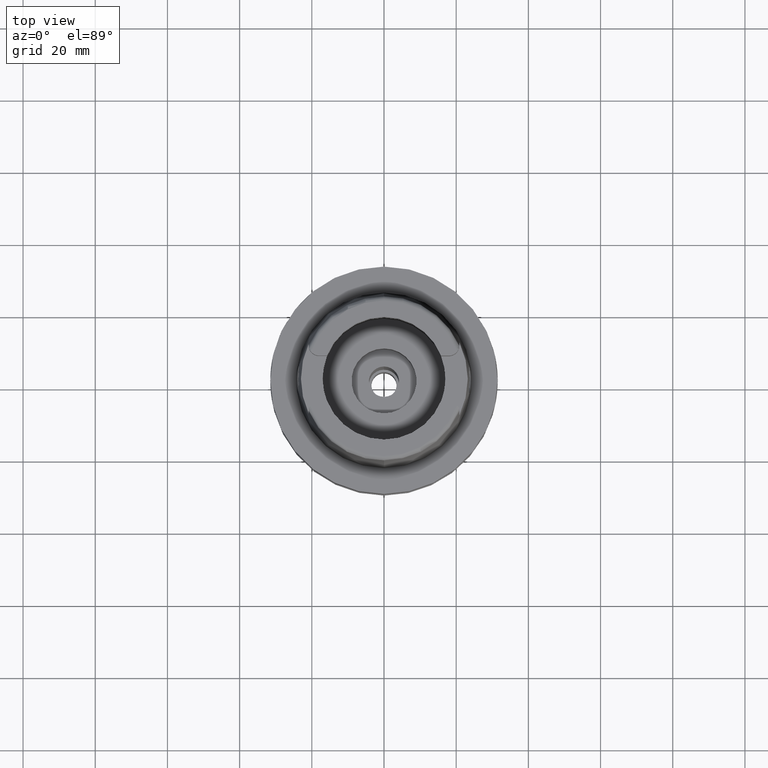
[diagram: clean part render]
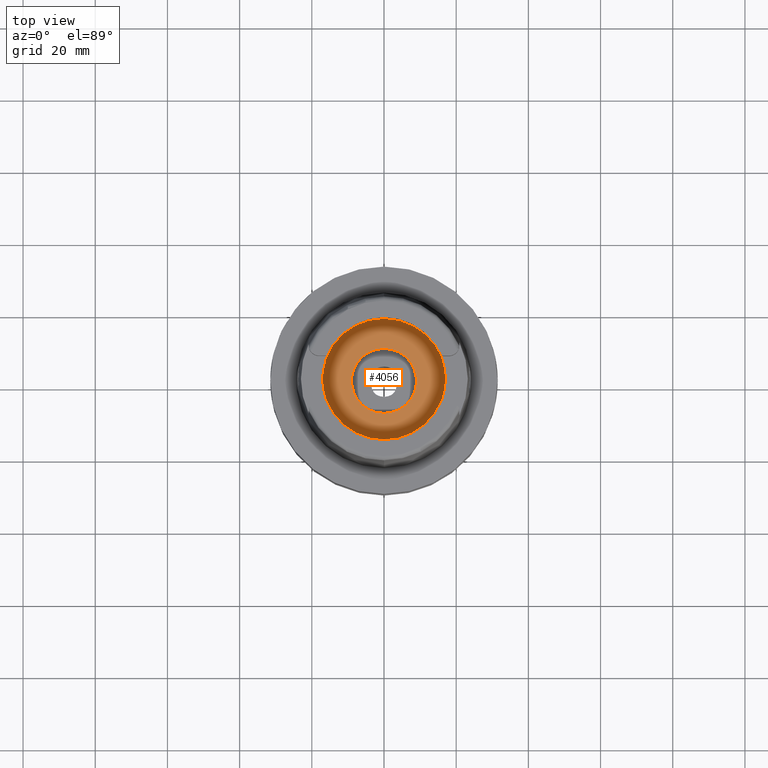
[diagram: same view with one face highlighted and labeled with its STEP entity id]
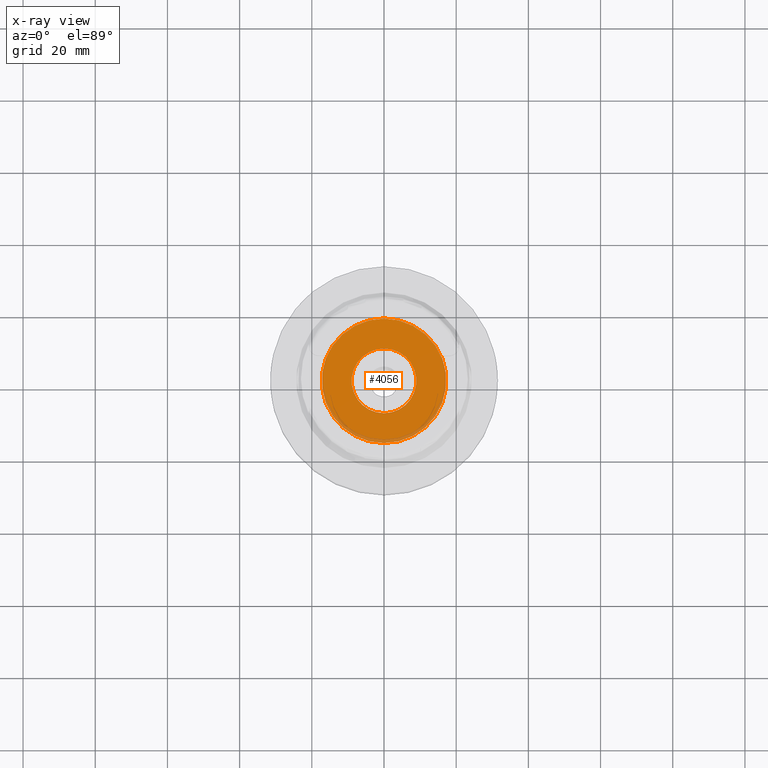
[diagram: x-ray of the same camera — body ghosted, the highlighted face saturated]
A machine part, top view. The second image highlights one B-rep face of the part: STEP entity #4056.
The next image is the same camera in x-ray: the body ghosted, the highlighted face saturated — about 6% of this face is hidden behind the body in this view.
In plain terms, the highlighted planar face has unit normal (0, 0, 1).
Its self-contained STEP definition (entity closure, byte-faithful):
#1973=CARTESIAN_POINT('',(0.E0,0.E0,-9.95E0));
#1974=DIRECTION('',(0.E0,0.E0,-1.E0));
#1975=DIRECTION('',(0.E0,-1.E0,0.E0));
#1976=AXIS2_PLACEMENT_3D('',#1973,#1974,#1975);
#1981=CARTESIAN_POINT('',(0.E0,0.E0,-9.95E0));
#1982=DIRECTION('',(0.E0,0.E0,-1.E0));
#1983=DIRECTION('',(0.E0,1.E0,0.E0));
#1984=AXIS2_PLACEMENT_3D('',#1981,#1982,#1983);
#1989=CARTESIAN_POINT('',(0.E0,0.E0,-9.95E0));
#1990=DIRECTION('',(0.E0,0.E0,1.E0));
#1991=DIRECTION('',(0.E0,-1.E0,0.E0));
#1992=AXIS2_PLACEMENT_3D('',#1989,#1990,#1991);
#1997=CARTESIAN_POINT('',(0.E0,0.E0,-9.95E0));
#1998=DIRECTION('',(0.E0,0.E0,1.E0));
#1999=DIRECTION('',(0.E0,1.E0,0.E0));
#2000=AXIS2_PLACEMENT_3D('',#1997,#1998,#1999);
#2416=CARTESIAN_POINT('',(0.E0,1.725E1,-9.95E0));
#2417=VERTEX_POINT('',#2416);
#2418=CARTESIAN_POINT('',(0.E0,-1.725E1,-9.95E0));
#2419=VERTEX_POINT('',#2418);
#2420=CARTESIAN_POINT('',(0.E0,-9.E0,-9.95E0));
#2421=CARTESIAN_POINT('',(0.E0,9.E0,-9.95E0));
#2422=VERTEX_POINT('',#2420);
#2423=VERTEX_POINT('',#2421);
#4041=CARTESIAN_POINT('',(0.E0,0.E0,-9.95E0));
#4042=DIRECTION('',(0.E0,0.E0,1.E0));
#4043=DIRECTION('',(0.E0,1.E0,0.E0));
#4044=AXIS2_PLACEMENT_3D('',#4041,#4042,#4043);
#4045=PLANE('',#4044);
#4047=ORIENTED_EDGE('',*,*,#4046,.T.);
#4049=ORIENTED_EDGE('',*,*,#4048,.T.);
#4050=EDGE_LOOP('',(#4047,#4049));
#4051=FACE_OUTER_BOUND('',#4050,.F.);
#4052=ORIENTED_EDGE('',*,*,#4034,.T.);
#4053=ORIENTED_EDGE('',*,*,#4023,.T.);
#4054=EDGE_LOOP('',(#4052,#4053));
#4055=FACE_BOUND('',#4054,.F.);
#1977=CIRCLE('',#1976,1.725E1);
#1985=CIRCLE('',#1984,1.725E1);
#1993=CIRCLE('',#1992,9.E0);
#2001=CIRCLE('',#2000,9.E0);
#4023=EDGE_CURVE('',#2423,#2422,#2001,.T.);
#4034=EDGE_CURVE('',#2422,#2423,#1993,.T.);
#4046=EDGE_CURVE('',#2419,#2417,#1977,.T.);
#4048=EDGE_CURVE('',#2417,#2419,#1985,.T.);
#4056=ADVANCED_FACE('',(#4051,#4055),#4045,.T.);